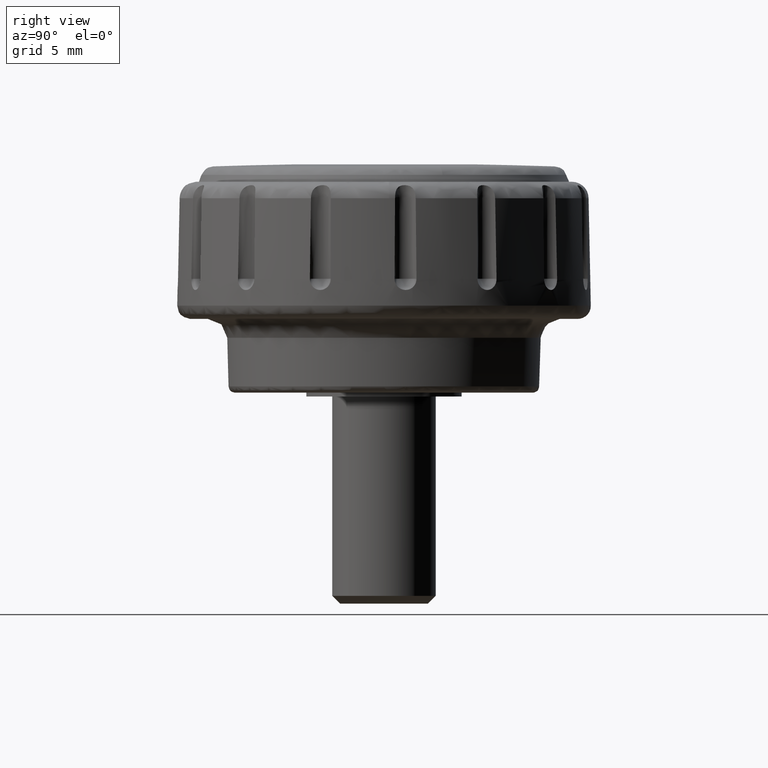
[diagram: clean part render]
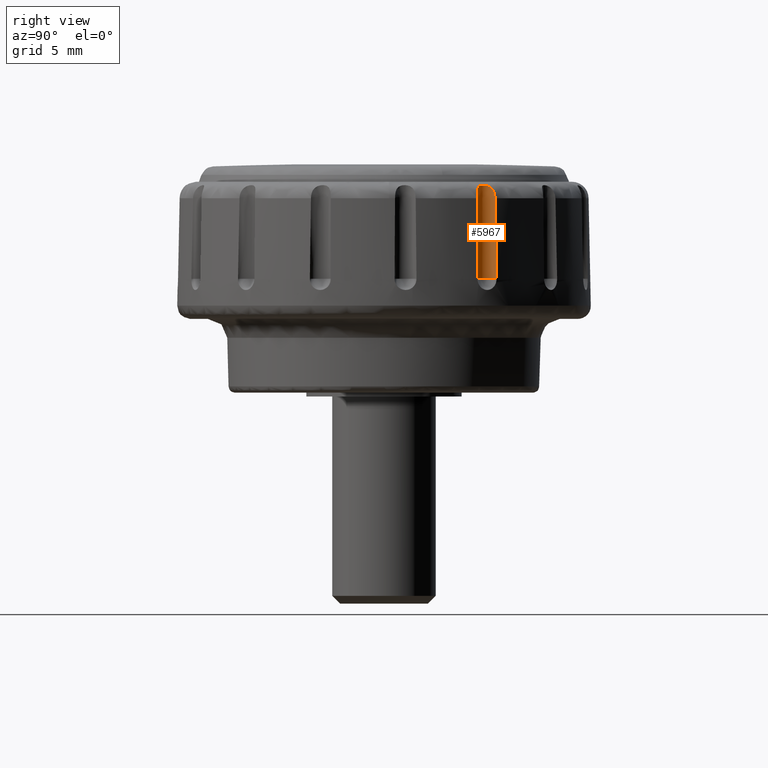
[diagram: same view with one face highlighted and labeled with its STEP entity id]
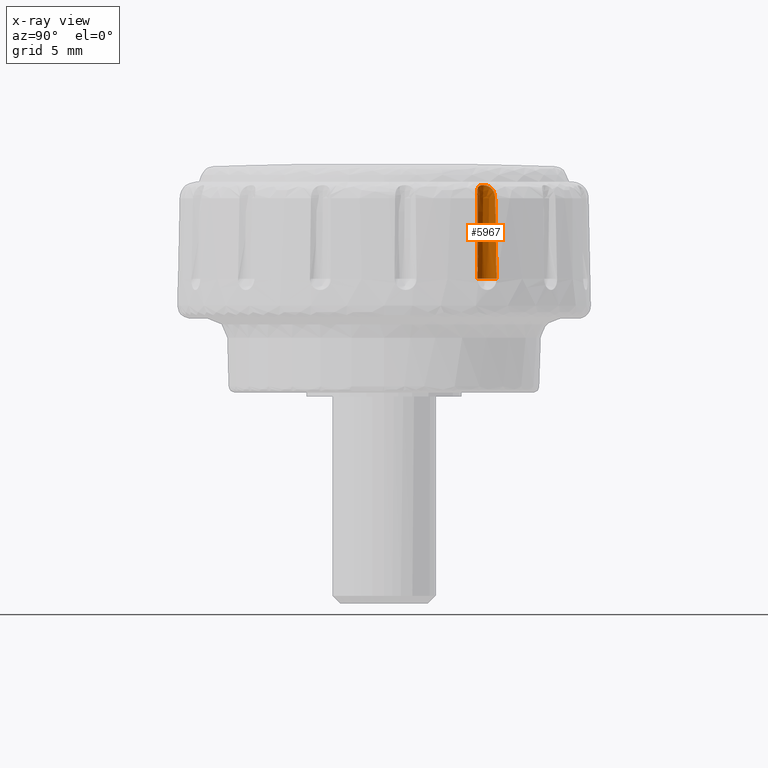
[diagram: x-ray of the same camera — body ghosted, the highlighted face saturated]
A machine part, right view. The second image highlights one B-rep face of the part: STEP entity #5967.
The next image is the same camera in x-ray: the body ghosted, the highlighted face saturated — about 0% of this face is hidden behind the body in this view.
In plain terms, the highlighted face is a freeform B-spline surface patch.
Its self-contained STEP definition (entity closure, byte-faithful):
#2411=CARTESIAN_POINT('',(13.274447920699179,8.589622672245989,15.326313504426750));
#2412=VERTEX_POINT('',#2411);
#2421=CARTESIAN_POINT('',(13.355504674081820,8.696306670591241,9.099991000000141));
#2422=VERTEX_POINT('',#2421);
#2423=CARTESIAN_POINT('',(13.355504674081820,8.696306670591241,9.099991000000141));
#2424=CARTESIAN_POINT('',(13.274447920699179,8.589622672245989,15.326313504426750));
#2425=QUASI_UNIFORM_CURVE('',1,(#2423,#2424),.UNSPECIFIED.,.F.,.U.);
#2426=EDGE_CURVE('',#2422,#2412,#2425,.T.);
#2428=CARTESIAN_POINT('',(14.208974832873000,7.218052992821050,9.099991000000120));
#2429=VERTEX_POINT('',#2428);
#2480=CARTESIAN_POINT('',(14.076055403437399,7.201197784416010,15.326313504426750));
#2481=VERTEX_POINT('',#2480);
#2482=CARTESIAN_POINT('',(14.076055403437399,7.201197784416010,15.326313504426750));
#2483=CARTESIAN_POINT('',(14.208974832873000,7.218052992821050,9.099991000000120));
#2484=QUASI_UNIFORM_CURVE('',1,(#2482,#2483),.UNSPECIFIED.,.F.,.U.);
#2485=EDGE_CURVE('',#2481,#2429,#2484,.T.);
#4128=CARTESIAN_POINT('',(13.274447920699171,8.589622672245982,15.326313504426750));
#4129=CARTESIAN_POINT('',(13.273651685297819,8.588394616169630,15.392275721103591));
#4130=CARTESIAN_POINT('',(13.269864004616799,8.582634087369346,15.457215844345249));
#4131=CARTESIAN_POINT('',(13.257033813568370,8.561817892156713,15.585084659193910));
#4132=CARTESIAN_POINT('',(13.247952280583970,8.546720784454744,15.648165348789490));
#4133=CARTESIAN_POINT('',(13.225787234317011,8.505484132257807,15.771480120165689));
#4134=CARTESIAN_POINT('',(13.212989193209610,8.479861425365009,15.830187260820820));
#4135=CARTESIAN_POINT('',(13.193180654141029,8.432682481816148,15.913622888200090));
#4136=CARTESIAN_POINT('',(13.186481282378949,8.415488449775490,15.940659858825740));
#4137=CARTESIAN_POINT('',(13.173327134265280,8.377810710922356,15.993099398981199));
#4138=CARTESIAN_POINT('',(13.166906956633710,8.357388502595359,16.018370617664171));
#4139=CARTESIAN_POINT('',(13.149261747944831,8.292368300684563,16.089836993467141));
#4140=CARTESIAN_POINT('',(13.139431503323260,8.243461584948195,16.132419336099559));
#4141=CARTESIAN_POINT('',(13.128605463136850,8.134498646691840,16.206696576304662));
#4142=CARTESIAN_POINT('',(13.127860159158431,8.076738576793719,16.236916716465391));
#4143=CARTESIAN_POINT('',(13.136342103423891,7.985992683038861,16.273372733730451));
#4144=CARTESIAN_POINT('',(13.140838300049230,7.954780364990333,16.284103694936650));
#4145=CARTESIAN_POINT('',(13.153233760237191,7.892711014728906,16.302198413553530));
#4146=CARTESIAN_POINT('',(13.161098017268991,7.861836877125358,16.309608231862100));
#4147=CARTESIAN_POINT('',(13.180290562199369,7.800514819697545,16.321470491403620));
#4148=CARTESIAN_POINT('',(13.191617200883870,7.770066507110494,16.325923424713800));
#4149=CARTESIAN_POINT('',(13.217981101691301,7.709683848709968,16.331938362176231));
#4150=CARTESIAN_POINT('',(13.232828210397949,7.680223733257872,16.333442616285961));
#4151=CARTESIAN_POINT('',(13.265410331611671,7.623478958945771,16.333568197326350));
#4152=CARTESIAN_POINT('',(13.283198767868861,7.596070929906574,16.332201752975379));
#4153=CARTESIAN_POINT('',(13.321772366434651,7.543187467122883,16.326516220408550));
#4154=CARTESIAN_POINT('',(13.342700526170420,7.517588755725478,16.322144624058812));
#4155=CARTESIAN_POINT('',(13.386239552390430,7.469823833273315,16.310487336771370));
#4156=CARTESIAN_POINT('',(13.408961995605541,7.447473142672611,16.303198625291220));
#4157=CARTESIAN_POINT('',(13.456094895908810,7.405683288387701,16.285489112634881));
#4158=CARTESIAN_POINT('',(13.480623380415730,7.386162949653147,16.275010779707209));
#4159=CARTESIAN_POINT('',(13.555658154664190,7.332433509595891,16.238602871068760));
#4160=CARTESIAN_POINT('',(13.606227890803090,7.303918819509814,16.208460699983149));
#4161=CARTESIAN_POINT('',(13.680903156555820,7.269846184066408,16.153291029476762));
#4162=CARTESIAN_POINT('',(13.705509042973191,7.260006950044883,16.133261844905380));
#4163=CARTESIAN_POINT('',(13.752697938197230,7.243291522886831,16.090859748792749));
#4164=CARTESIAN_POINT('',(13.775454111304400,7.236334379079451,16.068364298256721));
#4165=CARTESIAN_POINT('',(13.819106416418490,7.224670516577376,16.020775310077280));
#4166=CARTESIAN_POINT('',(13.840105519302300,7.219947149664264,15.995538181463870));
#4167=CARTESIAN_POINT('',(13.879481536267679,7.212381640883982,15.943208481862390));
#4168=CARTESIAN_POINT('',(13.897845036852409,7.209529913071811,15.916170960119119));
#4169=CARTESIAN_POINT('',(13.931975567336201,7.205144458694122,15.860425718516611));
#4170=CARTESIAN_POINT('',(13.947742670365001,7.203612097302760,15.831717933635810));
#4171=CARTESIAN_POINT('',(13.976690093494151,7.201438393542985,15.772672126267009));
#4172=CARTESIAN_POINT('',(13.989887404815541,7.200799197015071,15.742256066367601));
#4173=CARTESIAN_POINT('',(14.025008447328631,7.199705445574580,15.650174610634011));
#4174=CARTESIAN_POINT('',(14.042763689555001,7.200008968479734,15.587218446226860));
#4175=CARTESIAN_POINT('',(14.067589461986550,7.200714515714715,15.458347906808440));
#4176=CARTESIAN_POINT('',(14.074591864942949,7.201122154544710,15.392361151363779));
#4177=CARTESIAN_POINT('',(14.076055403437399,7.201197784416010,15.326313504426750));
#4178=B_SPLINE_CURVE_WITH_KNOTS('',3,(#4128,#4129,#4130,#4131,#4132,#4133,#4134,#4135,#4136,#4137,#4138,#4139,#4140,#4141,#4142,#4143,#4144,#4145,#4146,#4147,#4148,#4149,#4150,#4151,#4152,#4153,#4154,#4155,#4156,#4157,#4158,#4159,#4160,#4161,#4162,#4163,#4164,#4165,#4166,#4167,#4168,#4169,#4170,#4171,#4172,#4173,#4174,#4175,#4176,#4177),.UNSPECIFIED.,.F.,.U.,(4,2,2,2,2,2,2,2,2,2,2,2,2,2,2,2,2,2,2,2,2,2,2,2,4),(0.0,0.062499999999999,0.124999999999998,0.187499999999998,0.218749999999998,0.249999999999998,0.312499999999996,0.374999999999994,0.406249999999993,0.437499999999992,0.468749999999992,0.499999999999991,0.531249999999990,0.562499999999989,0.593749999999988,0.624999999999987,0.687499999999987,0.718749999999988,0.749999999999988,0.781249999999989,0.812499999999990,0.843749999999990,0.874999999999991,0.937499999999995,1.0),.UNSPECIFIED.);
#4179=EDGE_CURVE('',#2412,#2481,#4178,.T.);
#5522=CARTESIAN_POINT('',(13.355504674081820,8.696306670591241,9.099991000000141));
#5523=CARTESIAN_POINT('',(13.297341950440600,8.630613598421521,9.099991000000136));
#5524=CARTESIAN_POINT('',(13.210192249895560,8.496888503814054,9.099991000000163));
#5525=CARTESIAN_POINT('',(13.129910133900241,8.250490068141851,9.099991000000113));
#5526=CARTESIAN_POINT('',(13.122294948303439,8.013426313574939,9.099991000000188));
#5527=CARTESIAN_POINT('',(13.175690010321730,7.796331798727022,9.099991000000083));
#5528=CARTESIAN_POINT('',(13.251672788357590,7.637244282171637,9.099991000000236));
#5529=CARTESIAN_POINT('',(13.352107882928550,7.499738546114496,9.099991000000101));
#5530=CARTESIAN_POINT('',(13.497653413782370,7.362805568487771,9.099991000000143));
#5531=CARTESIAN_POINT('',(13.683296966483841,7.258722864803356,9.099991000000140));
#5532=CARTESIAN_POINT('',(13.933625367505950,7.192792260865530,9.099991000000193));
#5533=CARTESIAN_POINT('',(14.105808729589461,7.196990049373835,9.099991000000090));
#5534=CARTESIAN_POINT('',(14.208974832873000,7.218052992821050,9.099991000000120));
#5535=B_SPLINE_CURVE_WITH_KNOTS('',3,(#5522,#5523,#5524,#5525,#5526,#5527,#5528,#5529,#5530,#5531,#5532,#5533,#5534),.UNSPECIFIED.,.F.,.U.,(4,1,1,1,1,1,1,1,1,1,4),(0.000000129427251,0.263215578870687,0.473791874697045,0.772115776331442,0.965141346831660,1.140603455414685,1.298534192431657,1.474027418844111,1.737252124393433,1.930289144538942,2.246141144510853),.UNSPECIFIED.);
#5536=EDGE_CURVE('',#2422,#2429,#5535,.T.);
#5943=CARTESIAN_POINT('',(13.360734046325449,8.702166559837638,16.514345387040439));
#5944=CARTESIAN_POINT('',(13.360734046325449,8.702166559837638,8.914632140324112));
#5945=CARTESIAN_POINT('',(12.915153121420200,8.207225172063279,16.514345387040432));
#5946=CARTESIAN_POINT('',(12.915153121420200,8.207225172063279,8.914632140324112));
#5947=CARTESIAN_POINT('',(13.258192669865290,7.636407157128554,16.514345387040439));
#5948=CARTESIAN_POINT('',(13.258192669865290,7.636407157128554,8.914632140324112));
#5949=CARTESIAN_POINT('',(13.601232218310374,7.065589142193829,16.514345387040432));
#5950=CARTESIAN_POINT('',(13.601232218310374,7.065589142193829,8.914632140324112));
#5951=CARTESIAN_POINT('',(14.247403258348040,7.226748457742362,16.514345387040439));
#5952=CARTESIAN_POINT('',(14.247403258348040,7.226748457742362,8.914632140324112));
#5960=(BOUNDED_SURFACE()B_SPLINE_SURFACE(1,2,((#5943,#5945,#5947,#5949,#5951),(#5944,#5946,#5948,#5950,#5952)),.UNSPECIFIED.,.F.,.F.,.U.)B_SPLINE_SURFACE_WITH_KNOTS((2,2),(3,2,3),(0.0,7.599713246716323),(0.0,1.0,2.0),.UNSPECIFIED.)GEOMETRIC_REPRESENTATION_ITEM()RATIONAL_B_SPLINE_SURFACE(((1.0,0.803856860617218,1.0,0.803856860617218,1.0),(1.0,0.803856860617218,1.0,0.803856860617218,1.0)))REPRESENTATION_ITEM('')SURFACE());
#5961=ORIENTED_EDGE('',*,*,#2485,.T.);
#5962=ORIENTED_EDGE('',*,*,#5536,.F.);
#5963=ORIENTED_EDGE('',*,*,#2426,.T.);
#5964=ORIENTED_EDGE('',*,*,#4179,.T.);
#5965=EDGE_LOOP('',(#5961,#5962,#5963,#5964));
#5966=FACE_OUTER_BOUND('',#5965,.T.);
#5967=ADVANCED_FACE('',(#5966),#5960,.F.);